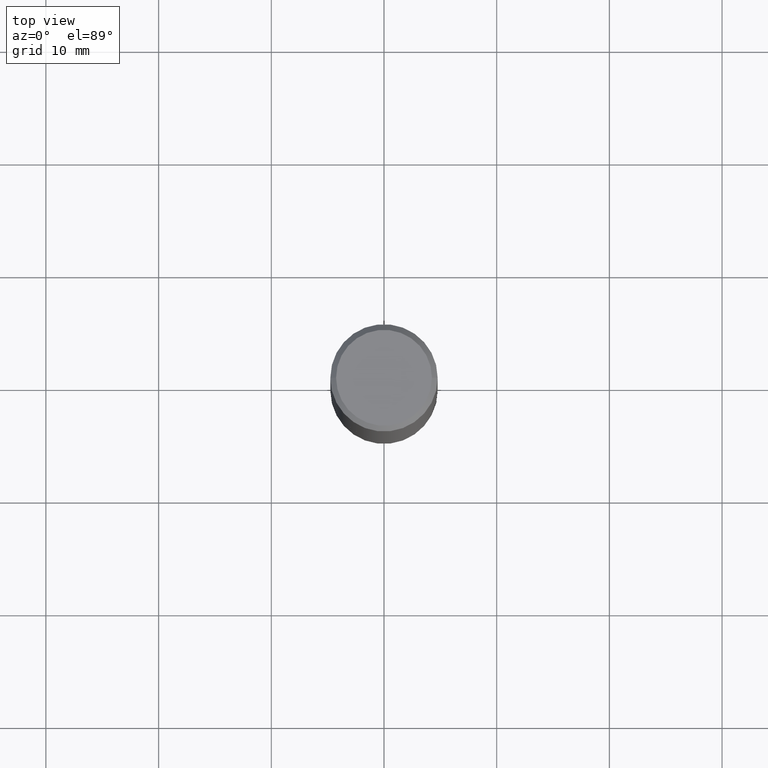
[diagram: clean part render]
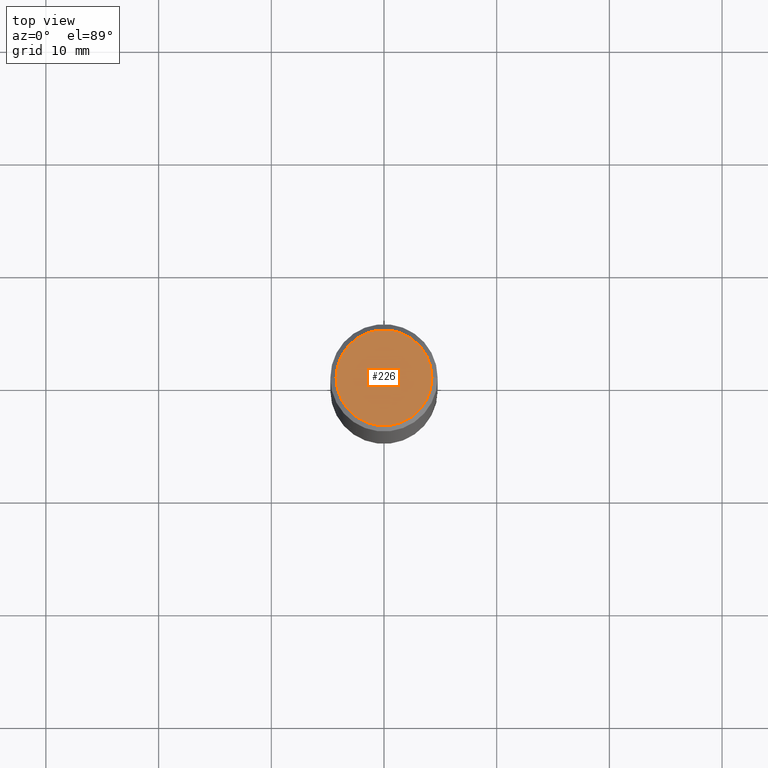
[diagram: same view with one face highlighted and labeled with its STEP entity id]
A machine part, top view. The second image highlights one B-rep face of the part: STEP entity #226.
In plain terms, the highlighted planar face has unit normal (0, -0, -1).
Its self-contained STEP definition (entity closure, byte-faithful):
#5 = CIRCLE ( 'NONE', #86, 0.1674999999999997879 ) ;
#13 = CARTESIAN_POINT ( 'NONE',  ( -0.1674999999999997879, 1.204561061900879272E-15, -8.301862719484101980E-30 ) ) ;
#15 = CARTESIAN_POINT ( 'NONE',  ( 0.1674999999999997879, -1.252653207992876908E-15, 8.469775550109228175E-30 ) ) ;
#18 = CARTESIAN_POINT ( 'NONE',  ( 1.169646248512448215E-15, 0.1674999999999997879, -5.848231242562260795E-16 ) ) ;
#33 = ORIENTED_EDGE ( 'NONE', *, *, #360, .T. ) ;
#42 = CARTESIAN_POINT ( 'NONE',  ( 0.000000000000000000, 0.000000000000000000, 0.000000000000000000 ) ) ;
#68 = CARTESIAN_POINT ( 'NONE',  ( 0.000000000000000000, 0.000000000000000000, 0.000000000000000000 ) ) ;
#79 = ORIENTED_EDGE ( 'NONE', *, *, #275, .T. ) ;
#86 = AXIS2_PLACEMENT_3D ( 'NONE', #68, #179, #178 ) ;
#122 = PLANE ( 'NONE',  #271 ) ;
#178 = DIRECTION ( 'NONE',  ( 1.000000000000000000, -6.982962677686266711E-15, 4.876176775795935793E-29 ) ) ;
#179 = DIRECTION ( 'NONE',  ( -2.445468806185136597E-29, 3.491481338843145583E-15, 1.000000000000000000 ) ) ;
#206 = DIRECTION ( 'NONE',  ( 2.438088387897960049E-29, -3.491481338843145188E-15, -1.000000000000000000 ) ) ;
#226 = ADVANCED_FACE ( 'NONE', ( #240 ), #122, .F. ) ;
#232 = VERTEX_POINT ( 'NONE', #15 ) ;
#238 = DIRECTION ( 'NONE',  ( -2.445468806185136597E-29, 3.491481338843145583E-15, 1.000000000000000000 ) ) ;
#240 = FACE_OUTER_BOUND ( 'NONE', #365, .T. ) ;
#241 = CIRCLE ( 'NONE', #294, 0.1674999999999997879 ) ;
#271 = AXIS2_PLACEMENT_3D ( 'NONE', #18, #206, #292 ) ;
#275 = EDGE_CURVE ( 'NONE', #337, #232, #241, .T. ) ;
#292 = DIRECTION ( 'NONE',  ( -1.000000000000000000, 6.982962677686265922E-15, -4.876176775795935793E-29 ) ) ;
#294 = AXIS2_PLACEMENT_3D ( 'NONE', #42, #238, #361 ) ;
#337 = VERTEX_POINT ( 'NONE', #13 ) ;
#360 = EDGE_CURVE ( 'NONE', #232, #337, #5, .T. ) ;
#361 = DIRECTION ( 'NONE',  ( 1.000000000000000000, -6.982962677686266711E-15, 4.876176775795935793E-29 ) ) ;
#365 = EDGE_LOOP ( 'NONE', ( #79, #33 ) ) ;